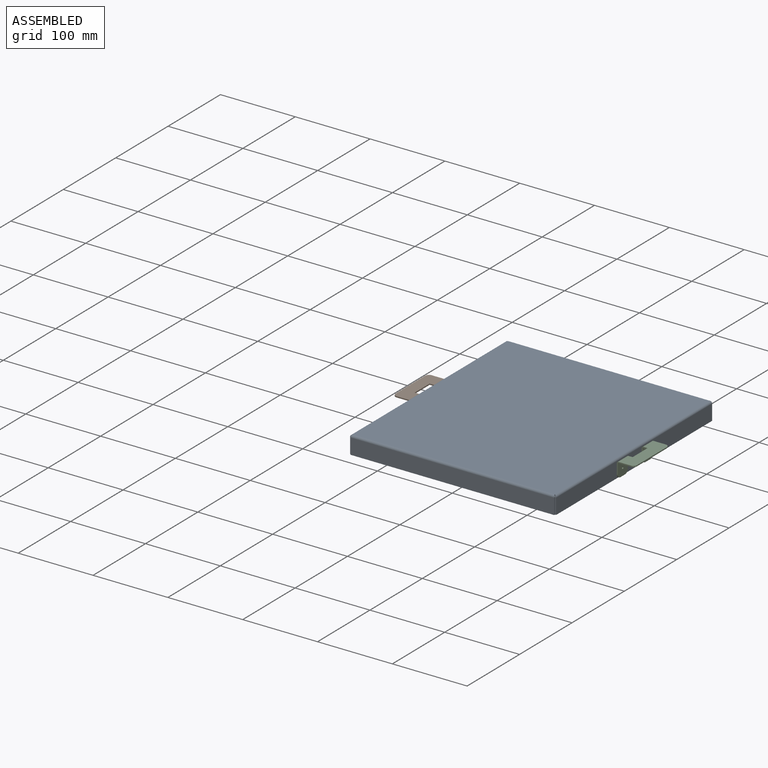
[diagram: assembled view]
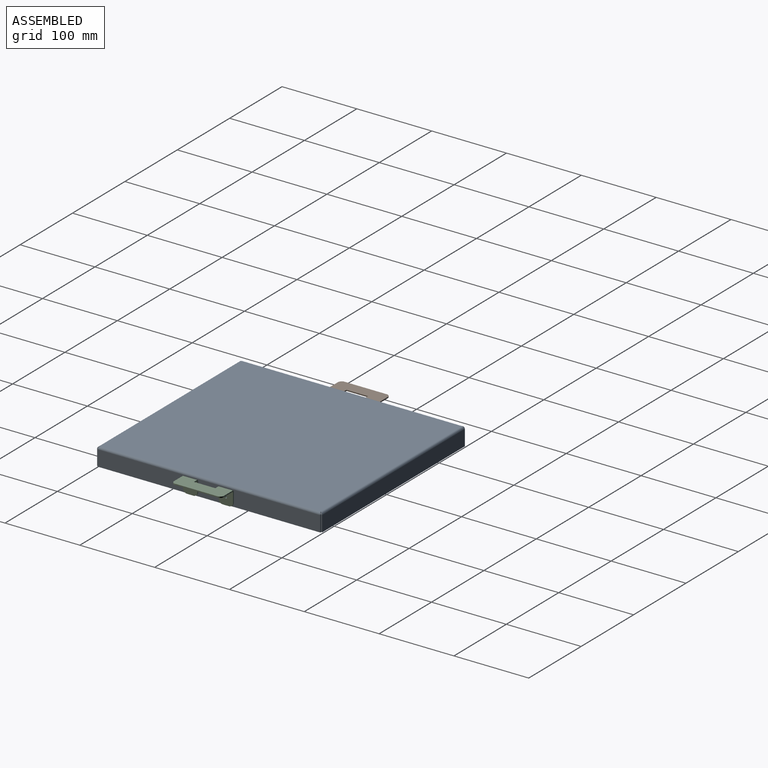
[diagram: assembled view, second angle]
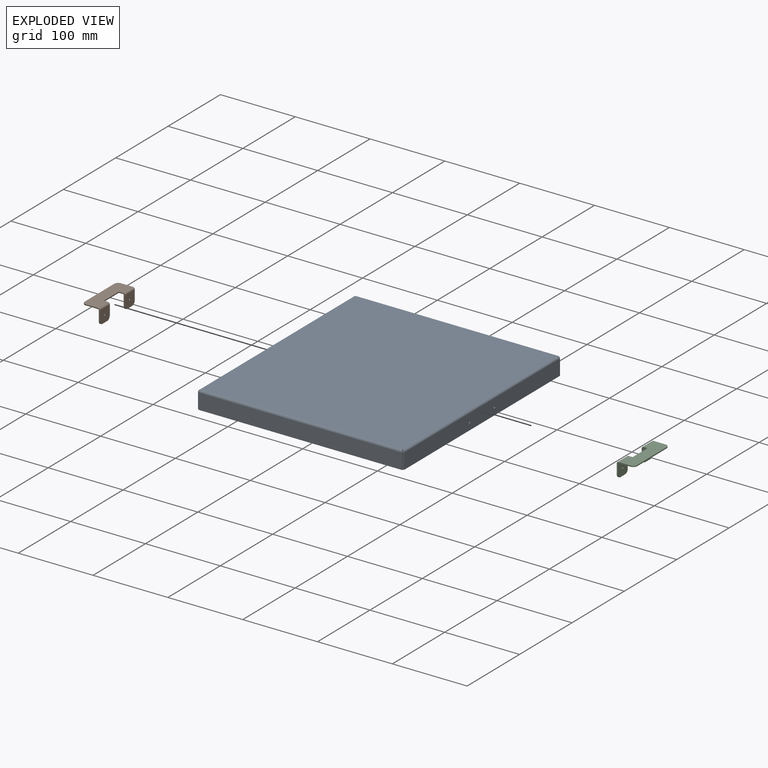
[diagram: exploded view]
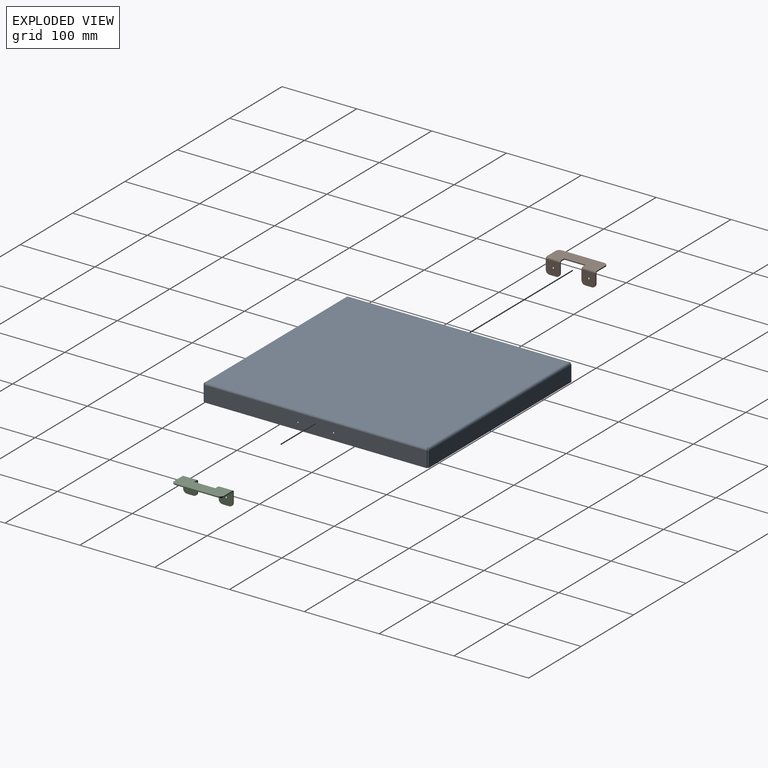
[diagram: exploded view, second angle]
ASSEMBLY  parts=3 mates=2
PART A: 46 faces, bbox 275.4x300.8x23.7 mm
  f0: plane 272.35x1.5mm, normal (0,0,1), area 408.5mm2, adj f1,f2,f3,f4
  f1: plane 20.73x1.5mm, normal (1,0,0), area 31.1mm2, adj f0,f3,f4,f43
  f2: plane 20.73x1.5mm, normal (-1,0,0), area 31.1mm2, adj f0,f3,f4,f42
  f3: plane 272.35x20.73mm, normal (0,1,0), area 5644.4mm2, adj f0,f1,f2,f44
  f4: plane 272.35x20.73mm, normal (0,-1,0), area 5644.4mm2, adj f0,f1,f2,f45
  f5: plane 294.8x269.4mm, normal (0,0,-1), area 79419.1mm2, adj f7,f8,f9,f10,f18,f29,f40,f44
  f6: plane 294.8x269.4mm, normal (0,0,1), area 79419.1mm2, adj f7,f8,f9,f10,f19,f30,f41,f45
  f7: plane 1.5x0.02mm, normal (0.71,-0.71,0), area 0mm2, adj f5,f6,f17,f27
  f8: plane 1.5x0.02mm, normal (-0.71,-0.71,0), area 0mm2, adj f5,f6,f16,f38
  f9: plane 1.5x0.02mm, normal (-0.71,0.71,0), area 0mm2, adj f5,f6,f39,f42
  f10: plane 1.5x0.02mm, normal (0.71,0.71,0), area 0mm2, adj f5,f6,f28,f43
  f11: plane 272.35x1.5mm, normal (0,0,1), area 408.5mm2, adj f12,f13,f14,f15
  f12: plane 20.73x1.5mm, normal (-1,0,0), area 31.1mm2, adj f11,f14,f15,f16
  f13: plane 20.73x1.5mm, normal (1,0,0), area 31.1mm2, adj f11,f14,f15,f17
  f14: plane 272.35x20.73mm, normal (0,-1,0), area 5644.4mm2, adj f11,f12,f13,f18
  f15: plane 272.35x20.73mm, normal (0,1,0), area 5644.4mm2, adj f11,f12,f13,f19
  f16: bspline ~3x3mm, area 5.9mm2, adj f8,f12,f18,f19
  f17: bspline ~3x3mm, area 5.9mm2, adj f7,f13,f18,f19
  f18: cylinder r=3mm len=272.35mm, axis (-1,0,0), area 1278.3mm2, adj f5,f14,f16,f17
  f19: cylinder r=1.5mm len=272.35mm, axis (-1,0,0), area 639.2mm2, adj f6,f15,f16,f17
  f20: plane 297.75x1.5mm, normal (0,0,1), area 446.6mm2, adj f21,f24,f25,f26
  f21: plane 20.73x1.5mm, normal (0,-1,0), area 31.1mm2, adj f20,f25,f26,f27
  f22: cylinder r=1.27mm len=2.54mm, axis (1,0,0), area 12mm2, adj f25,f26
  f23: cylinder r=1.27mm len=2.54mm, axis (1,0,0), area 12mm2, adj f25,f26
  f24: plane 20.73x1.5mm, normal (0,1,0), area 31.1mm2, adj f20,f25,f26,f28
  f25: plane 297.75x20.73mm, normal (1,0,0), area 6160.7mm2, adj f20,f21,f22,f23,f24,f29
  f26: plane 297.75x20.73mm, normal (-1,0,0), area 6160.7mm2, adj f20,f21,f22,f23,f24,f30
  f27: bspline ~3x3mm, area 5.9mm2, adj f7,f21,f29,f30
  f28: bspline ~3x3mm, area 5.9mm2, adj f10,f24,f29,f30
  f29: cylinder r=3mm len=297.75mm, axis (0,-1,0), area 1398mm2, adj f5,f25,f27,f28
  f30: cylinder r=1.5mm len=297.75mm, axis (0,-1,0), area 699mm2, adj f6,f26,f27,f28
  f31: plane 297.75x1.5mm, normal (0,0,1), area 446.6mm2, adj f32,f35,f36,f37
  f32: plane 20.73x1.5mm, normal (0,1,0), area 31.1mm2, adj f31,f36,f37,f39
  f33: cylinder r=1.27mm len=2.54mm, axis (1,0,0), area 12mm2, adj f36,f37
  f34: cylinder r=1.27mm len=2.54mm, axis (1,0,0), area 12mm2, adj f36,f37
  f35: plane 20.73x1.5mm, normal (0,-1,0), area 31.1mm2, adj f31,f36,f37,f38
  f36: plane 297.75x20.73mm, normal (-1,0,0), area 6160.7mm2, adj f31,f32,f33,f34,f35,f40
  f37: plane 297.75x20.73mm, normal (1,0,0), area 6160.7mm2, adj f31,f32,f33,f34,f35,f41
  f38: bspline ~3x3mm, area 5.9mm2, adj f8,f35,f40,f41
  f39: bspline ~3x3mm, area 5.9mm2, adj f9,f32,f40,f41
  f40: cylinder r=3mm len=297.75mm, axis (0,-1,0), area 1398mm2, adj f5,f36,f38,f39
  f41: cylinder r=1.5mm len=297.75mm, axis (0,-1,0), area 699mm2, adj f6,f37,f38,f39
  f42: bspline ~3x3mm, area 5.9mm2, adj f2,f9,f44,f45
  f43: bspline ~3x3mm, area 5.9mm2, adj f1,f10,f44,f45
  f44: cylinder r=3mm len=272.35mm, axis (-1,0,0), area 1278.3mm2, adj f3,f5,f42,f43
  f45: cylinder r=1.5mm len=272.35mm, axis (-1,0,0), area 639.2mm2, adj f4,f6,f42,f43
PART B: 34 faces, bbox 23.7x66.7x20.6 mm
  f0: plane 5.44x1.5mm, normal (0,-1,0), area 8.2mm2, adj f5,f6,f7,f19
  f1: plane 16.15x1.5mm, normal (0,1,0), area 24.2mm2, adj f6,f7,f8,f18
  f2: plane 56.52x1.5mm, normal (-1,0,0), area 84.8mm2, adj f6,f7,f8,f9
  f3: plane 16.15x1.5mm, normal (0,-1,0), area 24.2mm2, adj f6,f7,f9,f31
  f4: plane 5.44x1.5mm, normal (0,1,0), area 8.2mm2, adj f5,f6,f7,f30
  f5: plane 28.58x1.5mm, normal (1,0,0), area 42.9mm2, adj f0,f4,f6,f7
  f6: plane 66.68x21.23mm, normal (0,0,1), area 1248.7mm2, adj f0,f1,f2,f3,f4,f5,f8,f9
  f7: plane 66.68x21.23mm, normal (0,0,-1), area 1248.7mm2, adj f0,f1,f2,f3,f4,f5,f8,f9
  f8: cylinder r=5.08mm len=5.08mm, axis (0,0,-1), area 12mm2, adj f1,f2,f6,f7
  f9: cylinder r=5.08mm len=5.08mm, axis (0,0,1), area 12mm2, adj f2,f3,f6,f7
  f10: plane 8.89x1.5mm, normal (0,0,-1), area 13.3mm2, adj f14,f15,f16,f17
  f11: plane 12.97x1.5mm, normal (0,1,0), area 19.5mm2, adj f14,f15,f16,f18
  f12: cylinder r=1.27mm len=2.54mm, axis (-1,0,0), area 12mm2, adj f14,f15
  f13: plane 12.97x1.5mm, normal (0,-1,0), area 19.5mm2, adj f14,f15,f17,f19
  f14: plane 19.05x18.05mm, normal (1,0,0), area 327.7mm2, adj f10,f11,f12,f13,f16,f17,f20
  f15: plane 19.05x18.05mm, normal (-1,0,0), area 327.7mm2, adj f10,f11,f12,f13,f16,f17,f21
  f16: cylinder r=5.08mm len=5.08mm, axis (1,0,0), area 12mm2, adj f10,f11,f14,f15
  f17: cylinder r=5.08mm len=5.08mm, axis (1,0,0), area 12mm2, adj f10,f13,f14,f15
  f18: plane 2.5x2.5mm, normal (0,1,0), area 4.1mm2, adj f1,f11,f20,f21
  f19: plane 2.5x2.5mm, normal (0,-1,0), area 4.1mm2, adj f0,f13,f20,f21
  f20: cylinder r=2.5mm len=19.05mm, axis (0,1,0), area 74.8mm2, adj f6,f14,f18,f19
  f21: cylinder r=1mm len=19.05mm, axis (0,1,0), area 29.9mm2, adj f7,f15,f18,f19
  f22: plane 12.97x1.5mm, normal (0,-1,0), area 19.5mm2, adj f26,f27,f28,f31
  f23: plane 8.89x1.5mm, normal (0,0,-1), area 13.3mm2, adj f26,f27,f28,f29
  f24: plane 12.97x1.5mm, normal (0,1,0), area 19.5mm2, adj f26,f27,f29,f30
  f25: cylinder r=1.27mm len=2.54mm, axis (-1,0,0), area 12mm2, adj f26,f27
  f26: plane 19.05x18.05mm, normal (1,0,0), area 327.7mm2, adj f22,f23,f24,f25,f28,f29,f32
  f27: plane 19.05x18.05mm, normal (-1,0,0), area 327.7mm2, adj f22,f23,f24,f25,f28,f29,f33
  f28: cylinder r=5.08mm len=5.08mm, axis (-1,0,0), area 12mm2, adj f22,f23,f26,f27
  f29: cylinder r=5.08mm len=5.08mm, axis (-1,0,0), area 12mm2, adj f23,f24,f26,f27
  f30: plane 2.5x2.5mm, normal (0,1,0), area 4.1mm2, adj f4,f24,f32,f33
  f31: plane 2.5x2.5mm, normal (0,-1,0), area 4.1mm2, adj f3,f22,f32,f33
  f32: cylinder r=2.5mm len=19.05mm, axis (0,1,0), area 74.8mm2, adj f6,f26,f30,f31
  f33: cylinder r=1mm len=19.05mm, axis (0,1,0), area 29.9mm2, adj f7,f27,f30,f31
PART C: same geometry as B
PLACE A rot(axis=(1,0,0),180deg) t=(96.15,156.11,-58.51)mm
PLACE B t=(-54.17,189.45,-71.21)mm
PLACE C rot(axis=(0,0,1),180deg) t=(246.46,122.77,-71.21)mm
MATE fastened A.f23 <-> C.f12  axis (1,0,0) through (233.85,132.3,-71.21)mm
MATE fastened A.f23 <-> B.f25  axis (-1,0,0) through (-41.55,132.3,-71.21)mm
